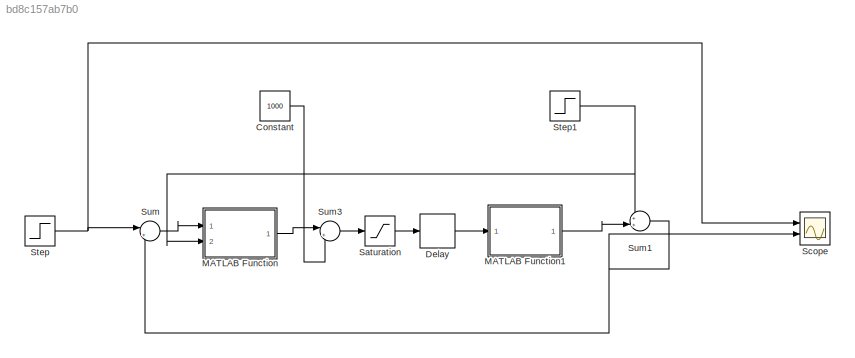
MODEL slx_bd8c157ab7b0
KIND model
CONFIG AbsTol = auto
CONFIG EnableMultiTasking = off
CONFIG FixedStep = auto
CONFIG MaxStep = auto
CONFIG MinStep = auto
CONFIG RelTol = 1e-3
CONFIG SampleTimeConstraint = Unconstrained
CONFIG SolverName = VariableStepAuto
CONFIG StartTime = 0.0
CONFIG StopTime = 100
BLOCK [Constant] Constant
  Value = 1000
BLOCK [Delay] Delay
  DelayLength = 1
  InitialCondition = 1000
  InputPortMap = u0
  NameLocation = right
  Ports = [1, 1]
  SampleTime = 1
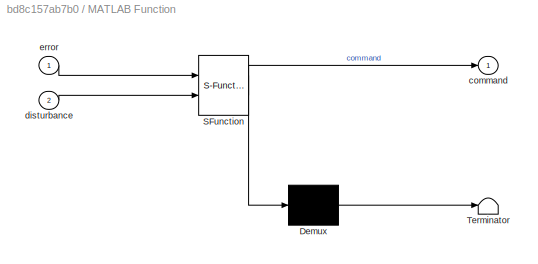
BLOCK [SubSystem] MATLAB Function
  ErrorFcn = Stateflow.Translate.translate
  PermitHierarchicalResolution = ExplicitOnly
  Ports = [2, 1]
  RequestExecContextInheritance = off
  SFBlockType = MATLAB Function
  TreatAsAtomicUnit = on
BLOCK [Demux] MATLAB Function/ Demux 
  Outputs = 1
  Ports = [1, 1]
BLOCK [S-Function] MATLAB Function/ SFunction 
  EnableBusSupport = on
  FunctionName = sf_sfun
  PortCounts = [2 2]
  Ports = [2, 2]
  SFcnIsStateOwnerBlock = off
  SFunctionDeploymentMode = off
  Tag = Stateflow S-Function 2
BLOCK [Terminator] MATLAB Function/ Terminator 
BLOCK [Outport] MATLAB Function/command
BLOCK [Inport] MATLAB Function/disturbance
  Port = 2
BLOCK [Inport] MATLAB Function/error
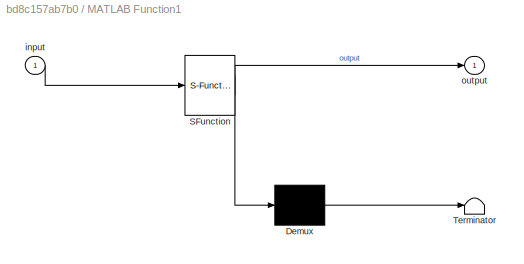
BLOCK [SubSystem] MATLAB Function1
  ErrorFcn = Stateflow.Translate.translate
  PermitHierarchicalResolution = ExplicitOnly
  Ports = [1, 1]
  RequestExecContextInheritance = off
  SFBlockType = MATLAB Function
  TreatAsAtomicUnit = on
BLOCK [Demux] MATLAB Function1/ Demux 
  Outputs = 1
  Ports = [1, 1]
BLOCK [S-Function] MATLAB Function1/ SFunction 
  EnableBusSupport = on
  FunctionName = sf_sfun
  PortCounts = [1 2]
  Ports = [1, 2]
  SFcnIsStateOwnerBlock = off
  SFunctionDeploymentMode = off
  Tag = Stateflow S-Function 1
BLOCK [Terminator] MATLAB Function1/ Terminator 
BLOCK [Inport] MATLAB Function1/input
BLOCK [Outport] MATLAB Function1/output
BLOCK [Saturate] Saturation
  LowerLimit = 1000
  UpperLimit = inf
BLOCK [Scope] Scope
  Floating = off
  NumInputPorts = 2
  Ports = [2]
  ScopeSpecificationString = Simulink.scopes.TimeScopeBlockCfg('CurrentConfiguration', extmgr.ConfigurationSet(extmgr.Configuration('Core','General UI',true),extmgr.Configuration('Core','Source UI',true),extmgr.Configuration('Sources','WiredSimulink',true),extmgr.Configuration('Visuals','Time Domain',true,'SerializedDisplays',{struct('MinYLimReal','987.35125','MaxYLimReal','1113.83875','YLabelReal','','MinYLimMag','987.35125'...<+1448ch>
BLOCK [Step] Step
  After = 1100
  Before = 1000
  Time = 20
BLOCK [Step] Step1
  After = -100
  Time = 50
BLOCK [Sum] Sum
  Inputs = |+-
  Ports = [2, 1]
BLOCK [Sum] Sum1
  Inputs = ++|
  Ports = [2, 1]
BLOCK [Sum] Sum3
  Inputs = |++
  Ports = [2, 1]
LINE Constant:1 -> Sum3:2
LINE Delay:1 -> MATLAB Function1:1
LINE MATLAB Function1:1 -> Sum1:2
LINE MATLAB Function:1 -> Sum3:1
LINE Saturation:1 -> Delay:1
NET Step1:1 -> MATLAB Function:2, Sum1:1
NET Step:1 -> Scope:1, Sum:1
NET Sum1:1 -> Scope:2, Sum:2
LINE Sum3:1 -> Saturation:1
LINE Sum:1 -> MATLAB Function:1
note: NET lines group one-source signal fan-out (src -> all destinations, sorted); 1:1 wires keep LINE
CHART MATLAB Function states=1 transitions=1
  STATE_LABEL 'eML_blk_kernel()'
  STATE_LABEL 'SCRIPT:\nfunction command = fcn(error,disturbance)\npersistent z disturbance_old\nkp=0.3; ki=0.3; kf=-0.5;\nif isempty(z)s\n    z=0;\n    disturbance_old=0;\nend\n\n\nz=z+error;\ncommand= ki*z + kp*error +kf*disturbance_old -kf*disturbance;\ndisturbance_old = disturbance;\n\n'
CHART MATLAB Function1 states=1 transitions=1
  STATE_LABEL 'eML_blk_kernel()'
  STATE_LABEL 'SCRIPT:\nfunction output = fcn(input)\npersistent output_old\nalpha=0.5;\nif isempty(output_old)\n    output_old=1000;\nend\n\n\noutput_new= (1-alpha)*output_old + alpha*input ;\noutput= output_old;\noutput_old=output_new;\n\n'
CHART  states=0 transitions=0
CHART  states=0 transitions=0
